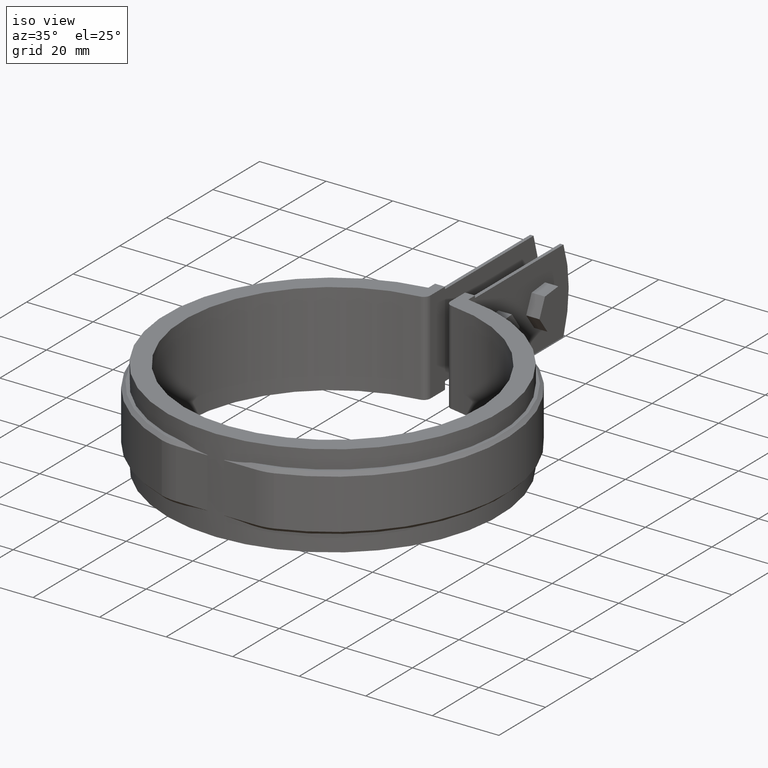
[diagram: clean part render]
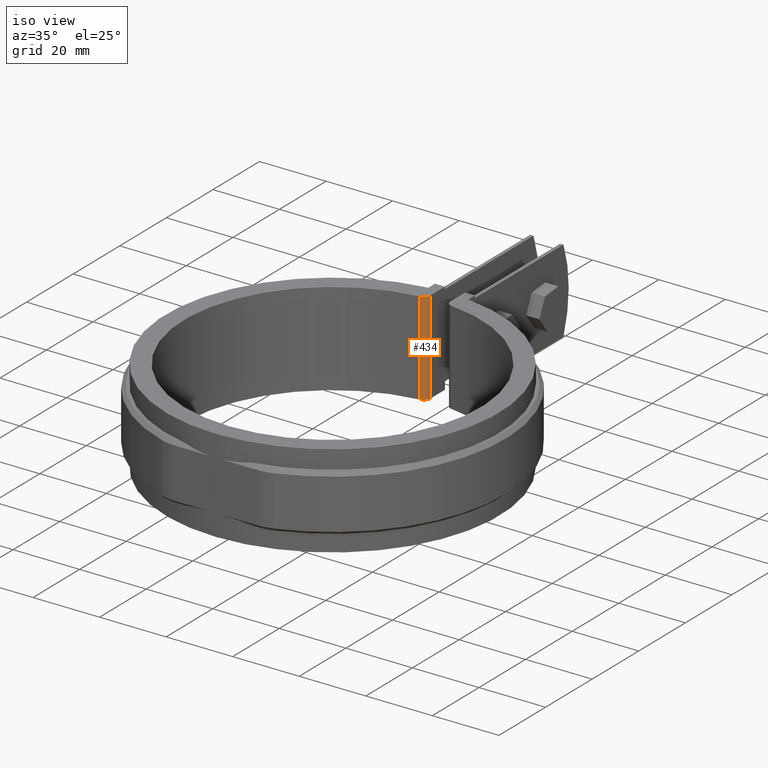
[diagram: same view with one face highlighted and labeled with its STEP entity id]
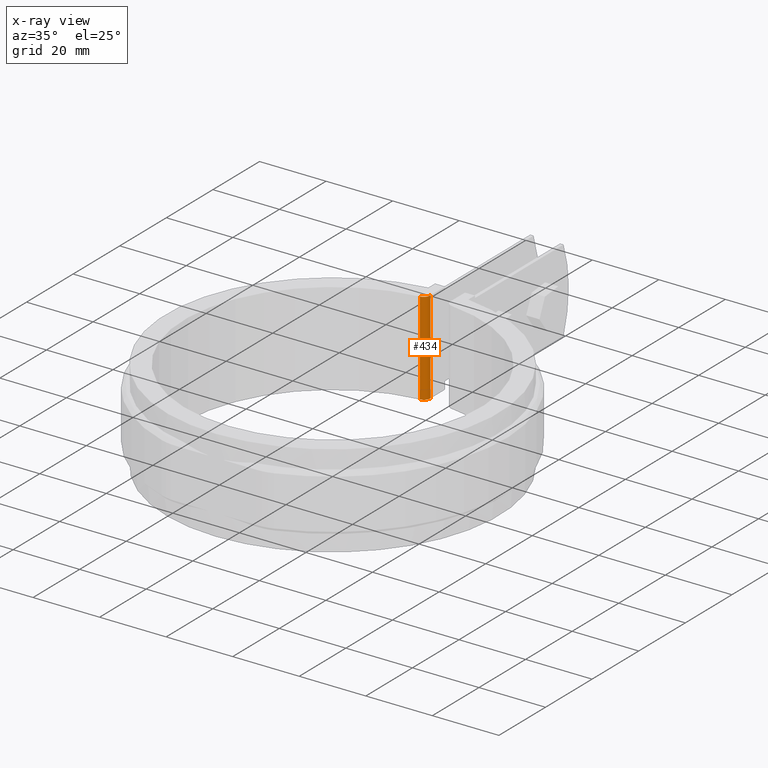
[diagram: x-ray of the same camera — body ghosted, the highlighted face saturated]
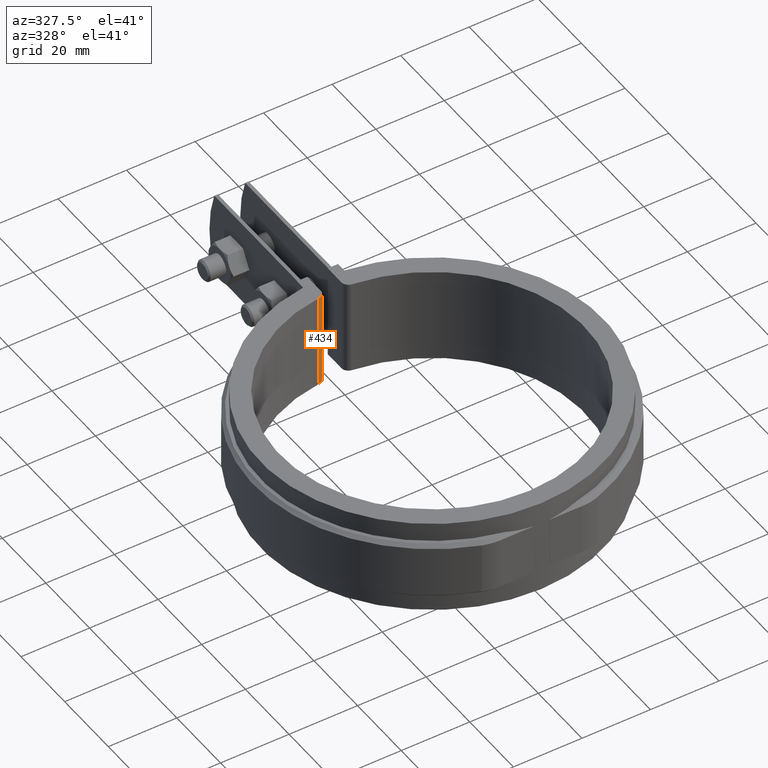
[diagram: same view with one face highlighted and labeled with its STEP entity id]
A machine part, iso view. The second image highlights one B-rep face of the part: STEP entity #434.
The next image is the same camera in x-ray: the body ghosted, the highlighted face saturated — about 0% of this face is hidden behind the body in this view.
A second angle (auxiliary view) of the same face is appended — the face is thin or edge-on in the first view.
In plain terms, the highlighted cylindrical surface (edge-blend (fillet) strip) has radius 2 mm, axis along (0, 0, 1).
Its self-contained STEP definition (entity closure, byte-faithful):
#434 = ADVANCED_FACE( '', ( #762 ), #763, .T. );
#762 = FACE_OUTER_BOUND( '', #1738, .T. );
#763 = CYLINDRICAL_SURFACE( '', #1739, 2.00000000000000 );
#1738 = EDGE_LOOP( '', ( #3493, #3494, #3495, #3496 ) );
#1739 = AXIS2_PLACEMENT_3D( '', #3497, #3498, #3499 );
#3493 = ORIENTED_EDGE( '', *, *, #4288, .T. );
#3494 = ORIENTED_EDGE( '', *, *, #4357, .F. );
#3495 = ORIENTED_EDGE( '', *, *, #4315, .F. );
#3496 = ORIENTED_EDGE( '', *, *, #4356, .T. );
#3497 = CARTESIAN_POINT( '', ( -4.99999999999933, 46.2806925185871, 14.0000000000000 ) );
#3498 = DIRECTION( '', ( 0.000000000000000, 0.000000000000000, 1.00000000000000 ) );
#3499 = DIRECTION( '', ( 0.107411385606873, 0.994214662053428, 0.000000000000000 ) );
#4288 = EDGE_CURVE( '', #4988, #4986, #4989, .T. );
#4315 = EDGE_CURVE( '', #5029, #5026, #5031, .T. );
#4356 = EDGE_CURVE( '', #5029, #4988, #5084, .T. );
#4357 = EDGE_CURVE( '', #5026, #4986, #5085, .T. );
#4986 = VERTEX_POINT( '', #7641 );
#4988 = VERTEX_POINT( '', #7644 );
#4989 = CIRCLE( '', #7645, 2.00000000000000 );
#5026 = VERTEX_POINT( '', #7703 );
#5029 = VERTEX_POINT( '', #7708 );
#5031 = CIRCLE( '', #7710, 2.00000000000000 );
#5084 = LINE( '', #7790, #7791 );
#5085 = LINE( '', #7792, #7793 );
#7641 = CARTESIAN_POINT( '', ( -2.99999999999934, 46.2806925185871, -14.0000000000000 ) );
#7644 = CARTESIAN_POINT( '', ( -4.78517722878559, 44.2922631944803, -14.0000000000000 ) );
#7645 = AXIS2_PLACEMENT_3D( '', #8551, #8552, #8553 );
#7703 = CARTESIAN_POINT( '', ( -2.99999999999934, 46.2806925185871, 14.0000000000000 ) );
#7708 = CARTESIAN_POINT( '', ( -4.78517722878559, 44.2922631944803, 14.0000000000000 ) );
#7710 = AXIS2_PLACEMENT_3D( '', #8595, #8596, #8597 );
#7790 = CARTESIAN_POINT( '', ( -4.78517722878559, 44.2922631944803, 14.0000000000000 ) );
#7791 = VECTOR( '', #8664, 1000.00000000000 );
#7792 = CARTESIAN_POINT( '', ( -2.99999999999934, 46.2806925185871, 14.0000000000000 ) );
#7793 = VECTOR( '', #8665, 1000.00000000000 );
#8551 = CARTESIAN_POINT( '', ( -4.99999999999933, 46.2806925185871, -14.0000000000000 ) );
#8552 = DIRECTION( '', ( 0.000000000000000, 0.000000000000000, 1.00000000000000 ) );
#8553 = DIRECTION( '', ( 1.00000000000000, 1.34614541735800E-015, 0.000000000000000 ) );
#8595 = CARTESIAN_POINT( '', ( -4.99999999999933, 46.2806925185871, 14.0000000000000 ) );
#8596 = DIRECTION( '', ( 0.000000000000000, 0.000000000000000, 1.00000000000000 ) );
#8597 = DIRECTION( '', ( 1.00000000000000, 1.34614541735800E-015, 0.000000000000000 ) );
#8664 = DIRECTION( '', ( 0.000000000000000, 0.000000000000000, -1.00000000000000 ) );
#8665 = DIRECTION( '', ( 0.000000000000000, 0.000000000000000, -1.00000000000000 ) );